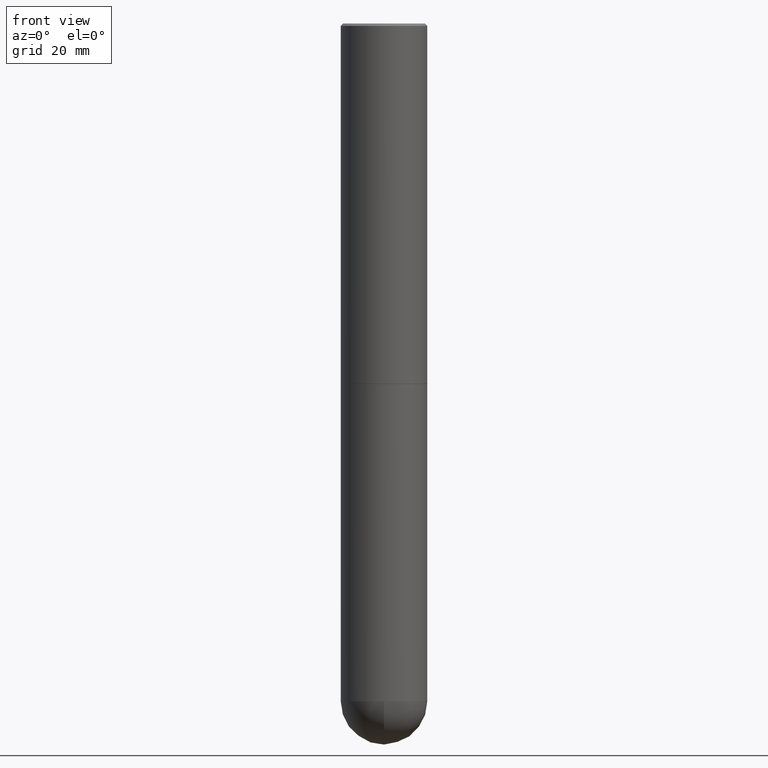
[diagram: clean part render]
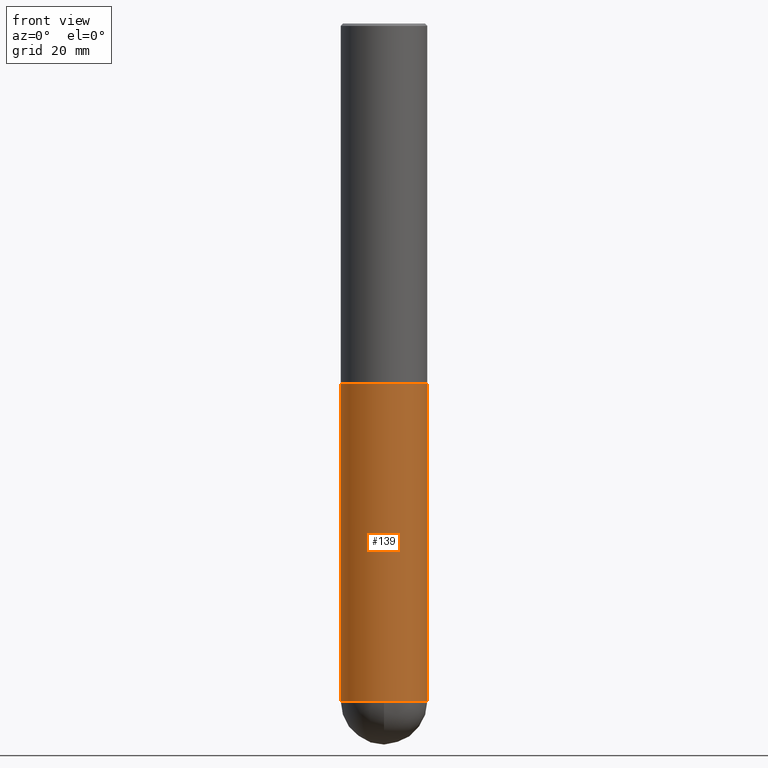
[diagram: same view with one face highlighted and labeled with its STEP entity id]
A machine part, front view. The second image highlights one B-rep face of the part: STEP entity #139.
In plain terms, the highlighted cylindrical surface (partial cylindrical patch) has radius 9.0005 mm, axis along (-0, 0, 1).
Its self-contained STEP definition (entity closure, byte-faithful):
#6 = DIRECTION ( 'NONE',  ( 1.000000000000000000, -6.982962677686261189E-15, 0.000000000000000000 ) ) ;
#18 = DIRECTION ( 'NONE',  ( -2.445468806185136597E-29, 3.491481338843145583E-15, 1.000000000000000000 ) ) ;
#31 = CIRCLE ( 'NONE', #157, 0.3543499999999999428 ) ;
#42 = EDGE_CURVE ( 'NONE', #101, #334, #287, .T. ) ;
#47 = CARTESIAN_POINT ( 'NONE',  ( 1.357516416345461774E-28, -1.938173663411912545E-14, -5.551149999999999807 ) ) ;
#60 = DIRECTION ( 'NONE',  ( 1.000000000000000000, -6.982962677686261189E-15, 0.000000000000000000 ) ) ;
#66 = VECTOR ( 'NONE', #409, 39.37007874015748143 ) ;
#75 = DIRECTION ( 'NONE',  ( -2.445468806185136597E-29, 3.491481338843145583E-15, 1.000000000000000000 ) ) ;
#79 = CARTESIAN_POINT ( 'NONE',  ( -0.3543499999999999983, -1.232770860749472484E-14, -2.952700000000000102 ) ) ;
#87 = AXIS2_PLACEMENT_3D ( 'NONE', #401, #18, #6 ) ;
#101 = VERTEX_POINT ( 'NONE', #258 ) ;
#114 = CARTESIAN_POINT ( 'NONE',  ( 0.3543499999999999983, -2.474412824838128694E-15, 1.727873240503289749E-29 ) ) ;
#117 = DIRECTION ( 'NONE',  ( -2.445468806185136877E-29, 3.491481338843145188E-15, 1.000000000000000000 ) ) ;
#122 = VECTOR ( 'NONE', #117, 39.37007874015748143 ) ;
#129 = ORIENTED_EDGE ( 'NONE', *, *, #317, .F. ) ;
#136 = ORIENTED_EDGE ( 'NONE', *, *, #42, .T. ) ;
#137 = DIRECTION ( 'NONE',  ( -2.445468806185136597E-29, 3.491481338843145583E-15, 1.000000000000000000 ) ) ;
#139 = ADVANCED_FACE ( 'NONE', ( #179 ), #247, .T. ) ;
#146 = VERTEX_POINT ( 'NONE', #79 ) ;
#149 = EDGE_CURVE ( 'NONE', #201, #366, #31, .T. ) ;
#157 = AXIS2_PLACEMENT_3D ( 'NONE', #47, #321, #60 ) ;
#169 = EDGE_CURVE ( 'NONE', #146, #334, #237, .T. ) ;
#172 = LINE ( 'NONE', #338, #66 ) ;
#176 = DIRECTION ( 'NONE',  ( 1.000000000000000000, -6.982962677686265922E-15, 0.000000000000000000 ) ) ;
#179 = FACE_OUTER_BOUND ( 'NONE', #274, .T. ) ;
#201 = VERTEX_POINT ( 'NONE', #215 ) ;
#213 = ORIENTED_EDGE ( 'NONE', *, *, #169, .F. ) ;
#215 = CARTESIAN_POINT ( 'NONE',  ( -0.3543499999999999428, -1.232770860749472642E-14, -5.551149999999999807 ) ) ;
#237 = CIRCLE ( 'NONE', #331, 0.3543499999999999983 ) ;
#239 = EDGE_CURVE ( 'NONE', #366, #101, #246, .T. ) ;
#246 = CIRCLE ( 'NONE', #87, 0.3543499999999999428 ) ;
#247 = CYLINDRICAL_SURFACE ( 'NONE', #290, 0.3543499999999999983 ) ;
#254 = ORIENTED_EDGE ( 'NONE', *, *, #239, .T. ) ;
#258 = CARTESIAN_POINT ( 'NONE',  ( 0.3543499999999999428, -1.731992961649876932E-14, -5.551149999999999807 ) ) ;
#274 = EDGE_LOOP ( 'NONE', ( #129, #308, #254, #136, #213 ) ) ;
#287 = LINE ( 'NONE', #114, #122 ) ;
#290 = AXIS2_PLACEMENT_3D ( 'NONE', #361, #75, #340 ) ;
#291 = CARTESIAN_POINT ( 'NONE',  ( 0.3543499999999999983, -1.278370977404028332E-14, -2.952700000000000102 ) ) ;
#308 = ORIENTED_EDGE ( 'NONE', *, *, #149, .T. ) ;
#317 = EDGE_CURVE ( 'NONE', #201, #146, #172, .T. ) ;
#321 = DIRECTION ( 'NONE',  ( -2.445468806185136597E-29, 3.491481338843145583E-15, 1.000000000000000000 ) ) ;
#331 = AXIS2_PLACEMENT_3D ( 'NONE', #348, #137, #176 ) ;
#334 = VERTEX_POINT ( 'NONE', #291 ) ;
#338 = CARTESIAN_POINT ( 'NONE',  ( -0.3543499999999999983, 2.517808184165914997E-15, -1.743024649231826066E-29 ) ) ;
#340 = DIRECTION ( 'NONE',  ( 1.000000000000000000, -6.982962677686266711E-15, 4.876176775795935793E-29 ) ) ;
#348 = CARTESIAN_POINT ( 'NONE',  ( 7.220735744022852519E-29, -1.030929694920215502E-14, -2.952700000000000102 ) ) ;
#350 = CARTESIAN_POINT ( 'NONE',  ( -2.517808184165781285E-15, -0.3543500000000196493, -5.551149999999998919 ) ) ;
#361 = CARTESIAN_POINT ( 'NONE',  ( 0.000000000000000000, 0.000000000000000000, 0.000000000000000000 ) ) ;
#366 = VERTEX_POINT ( 'NONE', #350 ) ;
#401 = CARTESIAN_POINT ( 'NONE',  ( 1.357516416345461774E-28, -1.938173663411912545E-14, -5.551149999999999807 ) ) ;
#409 = DIRECTION ( 'NONE',  ( -2.445468806185136877E-29, 3.491481338843145188E-15, 1.000000000000000000 ) ) ;